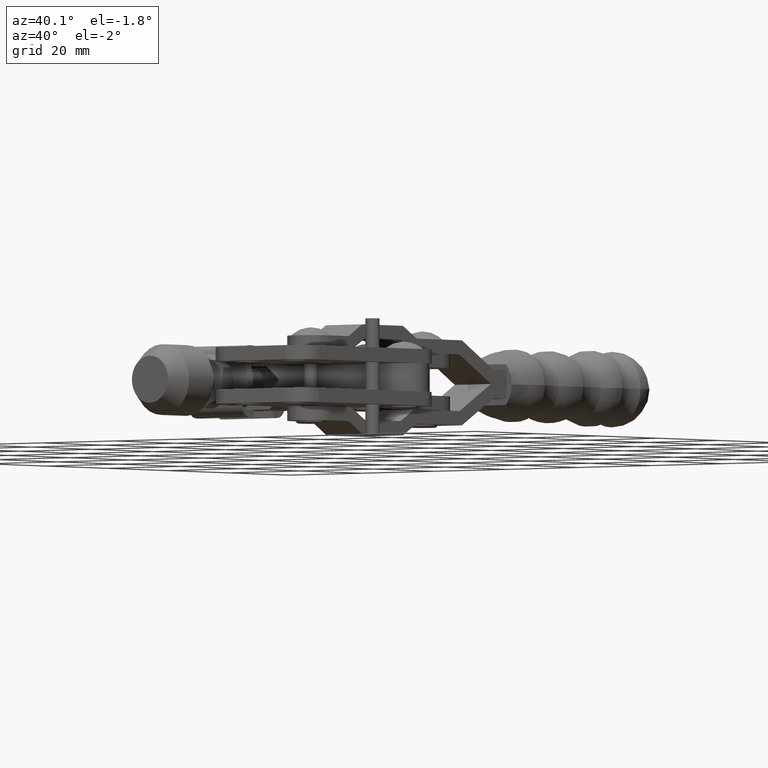
[diagram: clean part render]
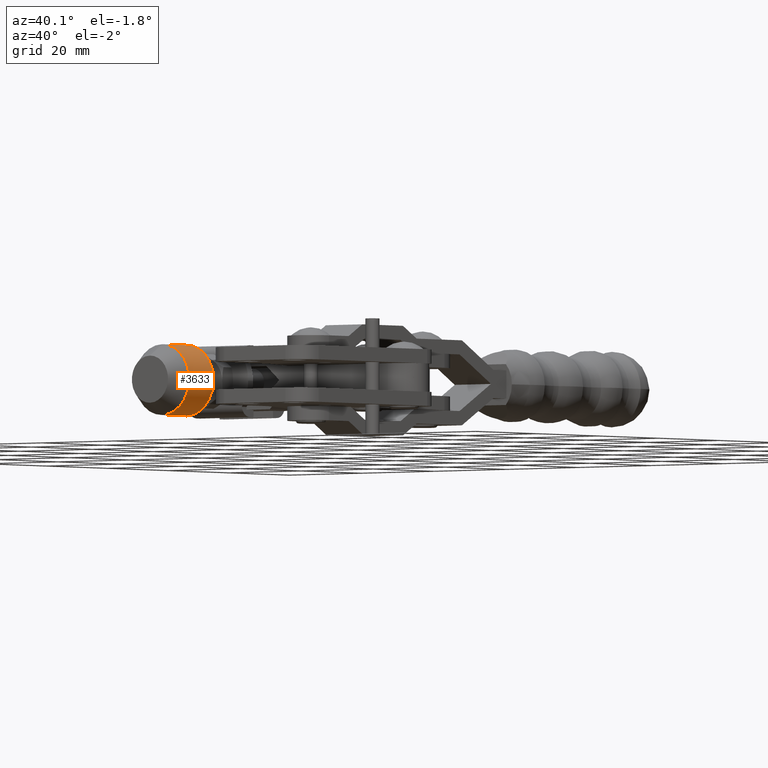
[diagram: same view with one face highlighted and labeled with its STEP entity id]
A machine part, auxiliary view. The second image highlights one B-rep face of the part: STEP entity #3633.
In plain terms, the highlighted cylindrical surface (edge-blend (fillet) strip) has radius 7.5 mm, axis along (0, 1, 0).
Its self-contained STEP definition (entity closure, byte-faithful):
#1518 = ORIENTED_EDGE ( 'NONE', *, *, #2645, .T. ) ;
#1546 = FACE_OUTER_BOUND ( 'NONE', #7432, .T. ) ;
#1983 = VERTEX_POINT ( 'NONE', #5347 ) ;
#2350 = DIRECTION ( 'NONE',  ( 0.0000000000000000000, 0.0000000000000000000, 1.000000000000000000 ) ) ;
#2535 = EDGE_CURVE ( 'NONE', #9127, #8337, #9262, .T. ) ;
#2630 = LINE ( 'NONE', #5089, #9069 ) ;
#2645 = EDGE_CURVE ( 'NONE', #1983, #8337, #5406, .T. ) ;
#2927 = AXIS2_PLACEMENT_3D ( 'NONE', #6776, #7035, #3227 ) ;
#3227 = DIRECTION ( 'NONE',  ( 0.0000000000000000000, 0.0000000000000000000, 1.000000000000000000 ) ) ;
#3349 = VECTOR ( 'NONE', #6968, 1000.000000000000000 ) ;
#3633 = ADVANCED_FACE ( 'NONE', ( #1546 ), #8252, .T. ) ;
#4580 = CARTESIAN_POINT ( 'NONE',  ( -4.634466110012502000, 12.90626203523284800, -33.18006977252663600 ) ) ;
#5008 = ORIENTED_EDGE ( 'NONE', *, *, #2535, .F. ) ;
#5089 = CARTESIAN_POINT ( 'NONE',  ( -4.634466110012502900, 14.25132599283862700, -18.18006977252698800 ) ) ;
#5142 = EDGE_CURVE ( 'NONE', #6104, #1983, #6283, .T. ) ;
#5347 = CARTESIAN_POINT ( 'NONE',  ( -4.634466110012502000, 4.906262035233701200, -33.18006977252665700 ) ) ;
#5406 = LINE ( 'NONE', #8725, #3349 ) ;
#5500 = DIRECTION ( 'NONE',  ( 0.0000000000000000000, 0.0000000000000000000, 1.000000000000000000 ) ) ;
#5974 = AXIS2_PLACEMENT_3D ( 'NONE', #11215, #9011, #5500 ) ;
#6104 = VERTEX_POINT ( 'NONE', #6886 ) ;
#6283 = CIRCLE ( 'NONE', #2927, 7.499999999999840100 ) ;
#6549 = CARTESIAN_POINT ( 'NONE',  ( -4.634466110012502900, 12.90626203523284800, -25.68006977252681700 ) ) ;
#6776 = CARTESIAN_POINT ( 'NONE',  ( -4.634466110012502900, 4.906262035233701200, -25.68006977252681700 ) ) ;
#6886 = CARTESIAN_POINT ( 'NONE',  ( -4.634466110012502900, 4.906262035233701200, -18.18006977252697700 ) ) ;
#6968 = DIRECTION ( 'NONE',  ( -0.0000000000000000000, 1.000000000000000000, -0.0000000000000000000 ) ) ;
#6984 = ORIENTED_EDGE ( 'NONE', *, *, #5142, .T. ) ;
#7035 = DIRECTION ( 'NONE',  ( -0.0000000000000000000, 1.000000000000000000, -0.0000000000000000000 ) ) ;
#7306 = CARTESIAN_POINT ( 'NONE',  ( -4.634466110012502900, 12.90626203523284800, -18.18006977252700200 ) ) ;
#7432 = EDGE_LOOP ( 'NONE', ( #6984, #1518, #5008, #10076 ) ) ;
#7835 = EDGE_CURVE ( 'NONE', #6104, #9127, #2630, .T. ) ;
#8252 = CYLINDRICAL_SURFACE ( 'NONE', #5974, 7.499999999999829500 ) ;
#8337 = VERTEX_POINT ( 'NONE', #4580 ) ;
#8725 = CARTESIAN_POINT ( 'NONE',  ( -4.634466110012502000, 14.25132599283862700, -33.18006977252664300 ) ) ;
#9011 = DIRECTION ( 'NONE',  ( -0.0000000000000000000, 1.000000000000000000, -0.0000000000000000000 ) ) ;
#9069 = VECTOR ( 'NONE', #10743, 1000.000000000000000 ) ;
#9127 = VERTEX_POINT ( 'NONE', #7306 ) ;
#9247 = DIRECTION ( 'NONE',  ( -0.0000000000000000000, 1.000000000000000000, -0.0000000000000000000 ) ) ;
#9262 = CIRCLE ( 'NONE', #9625, 7.499999999999816100 ) ;
#9625 = AXIS2_PLACEMENT_3D ( 'NONE', #6549, #9247, #2350 ) ;
#10076 = ORIENTED_EDGE ( 'NONE', *, *, #7835, .F. ) ;
#10743 = DIRECTION ( 'NONE',  ( -0.0000000000000000000, 1.000000000000000000, -0.0000000000000000000 ) ) ;
#11215 = CARTESIAN_POINT ( 'NONE',  ( -4.634466110012502900, 14.25132599283862700, -25.68006977252681700 ) ) ;